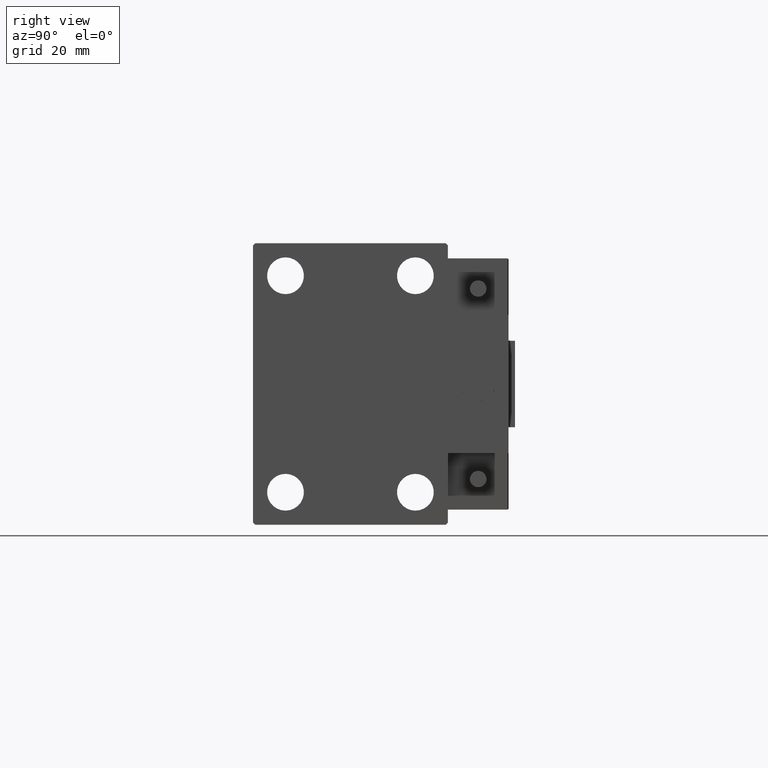
[diagram: clean part render]
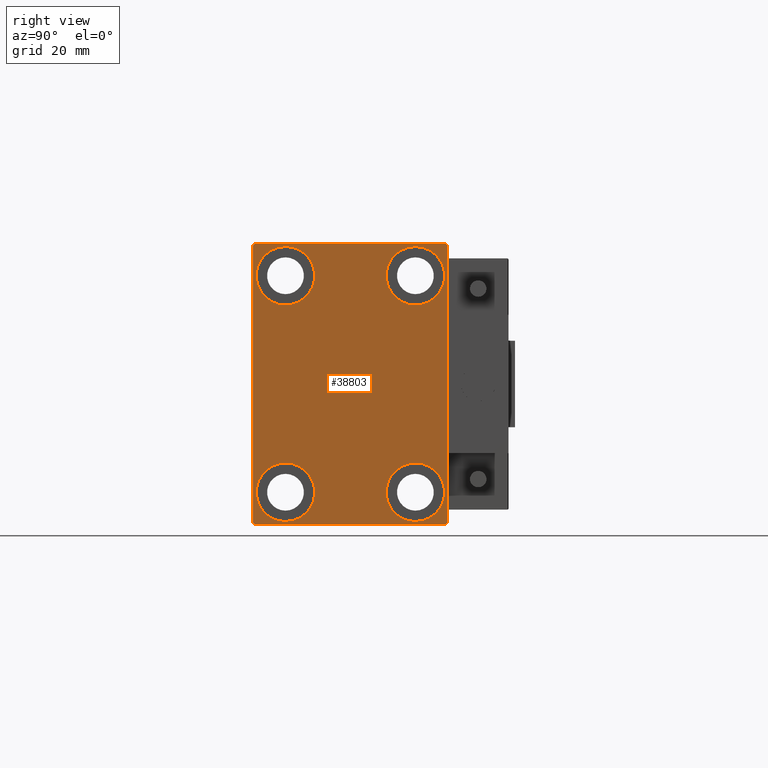
[diagram: same view with one face highlighted and labeled with its STEP entity id]
A machine part, right view. The second image highlights one B-rep face of the part: STEP entity #38803.
In plain terms, the highlighted planar face has unit normal (1, 0, 0).
Its self-contained STEP definition (entity closure, byte-faithful):
#3 = DIRECTION ( 'NONE',  ( -1.000000000000000000, -0.000000000000000000, -0.000000000000000000 ) ) ;
#94 = EDGE_CURVE ( 'NONE', #45570, #44008, #31037, .T. ) ;
#665 = DIRECTION ( 'NONE',  ( -1.000000000000000000, -0.000000000000000000, -0.000000000000000000 ) ) ;
#1421 = DIRECTION ( 'NONE',  ( -1.000000000000000000, -0.000000000000000000, -0.000000000000000000 ) ) ;
#1896 = DIRECTION ( 'NONE',  ( -1.000000000000000000, -0.000000000000000000, -0.000000000000000000 ) ) ;
#2014 = VECTOR ( 'NONE', #27481, 1000.000000000000114 ) ;
#2160 = CARTESIAN_POINT ( 'NONE',  ( 70.00000000000000000, -15.00000000000000355, -25.00000000000000000 ) ) ;
#2370 = LINE ( 'NONE', #45125, #43551 ) ;
#2564 = LINE ( 'NONE', #25465, #20729 ) ;
#2607 = EDGE_LOOP ( 'NONE', ( #25006, #4776, #46552, #29935, #16098, #49405, #22207, #6741 ) ) ;
#2710 = EDGE_CURVE ( 'NONE', #46439, #44018, #40017, .T. ) ;
#2717 = EDGE_CURVE ( 'NONE', #37036, #13383, #13192, .T. ) ;
#2831 = EDGE_CURVE ( 'NONE', #44008, #45570, #14015, .T. ) ;
#3075 = CARTESIAN_POINT ( 'NONE',  ( 70.00000000000000000, -21.99999999999999289, 32.49999999999999289 ) ) ;
#3164 = CARTESIAN_POINT ( 'NONE',  ( 70.00000000000000000, -14.99999999999999645, 31.75000000000000000 ) ) ;
#3456 = AXIS2_PLACEMENT_3D ( 'NONE', #2160, #13612, #21983 ) ;
#3530 = CARTESIAN_POINT ( 'NONE',  ( 70.00000000000000000, 15.00000000000000355, 31.75000000000000000 ) ) ;
#3619 = CARTESIAN_POINT ( 'NONE',  ( 70.00000000000000000, -22.50000000000000711, -32.00000000000000711 ) ) ;
#3623 = AXIS2_PLACEMENT_3D ( 'NONE', #15034, #30561, #6639 ) ;
#3766 = CARTESIAN_POINT ( 'NONE',  ( 70.00000000000000000, -22.50000000000000711, 31.99999999999999289 ) ) ;
#3933 = VERTEX_POINT ( 'NONE', #39271 ) ;
#4776 = ORIENTED_EDGE ( 'NONE', *, *, #38896, .T. ) ;
#6454 = CARTESIAN_POINT ( 'NONE',  ( 70.00000000000000000, 15.00000000000000355, 25.00000000000000000 ) ) ;
#6639 = DIRECTION ( 'NONE',  ( 0.000000000000000000, 0.000000000000000000, -1.000000000000000000 ) ) ;
#6741 = ORIENTED_EDGE ( 'NONE', *, *, #12519, .T. ) ;
#7116 = CARTESIAN_POINT ( 'NONE',  ( 70.00000000000000000, -27.25000000000032330, -27.24999999999957012 ) ) ;
#7741 = CARTESIAN_POINT ( 'NONE',  ( 70.00000000000000000, -15.00000000000000355, -18.25000000000000355 ) ) ;
#7907 = CARTESIAN_POINT ( 'NONE',  ( 70.00000000000000000, -15.00000000000000355, -25.00000000000000000 ) ) ;
#8300 = CARTESIAN_POINT ( 'NONE',  ( 70.00000000000000000, -14.99999999999999645, 25.00000000000000000 ) ) ;
#8625 = EDGE_CURVE ( 'NONE', #36028, #36456, #2564, .T. ) ;
#9329 = EDGE_CURVE ( 'NONE', #20282, #40471, #32107, .T. ) ;
#10381 = EDGE_CURVE ( 'NONE', #29861, #38826, #33100, .T. ) ;
#12369 = DIRECTION ( 'NONE',  ( 0.000000000000000000, 0.000000000000000000, 1.000000000000000000 ) ) ;
#12519 = EDGE_CURVE ( 'NONE', #23786, #29861, #25455, .T. ) ;
#13192 = CIRCLE ( 'NONE', #41616, 6.749999999999999112 ) ;
#13383 = VERTEX_POINT ( 'NONE', #38143 ) ;
#13612 = DIRECTION ( 'NONE',  ( -1.000000000000000000, -0.000000000000000000, -0.000000000000000000 ) ) ;
#13659 = CARTESIAN_POINT ( 'NONE',  ( 70.00000000000000000, -22.50000000000000711, -32.50000000000000711 ) ) ;
#13673 = DIRECTION ( 'NONE',  ( 0.000000000000000000, 0.000000000000000000, -1.000000000000000000 ) ) ;
#13776 = DIRECTION ( 'NONE',  ( -0.000000000000000000, 0.7071067811865376918, 0.7071067811865573427 ) ) ;
#14015 = CIRCLE ( 'NONE', #3456, 6.749999999999999112 ) ;
#14282 = DIRECTION ( 'NONE',  ( 0.000000000000000000, -1.000000000000000000, -1.541976423090495387E-16 ) ) ;
#14677 = EDGE_CURVE ( 'NONE', #44018, #46439, #15127, .T. ) ;
#14742 = LINE ( 'NONE', #7116, #26686 ) ;
#15034 = CARTESIAN_POINT ( 'NONE',  ( 70.00000000000000000, 0.000000000000000000, 0.000000000000000000 ) ) ;
#15127 = CIRCLE ( 'NONE', #19185, 6.749999999999999112 ) ;
#15533 = DIRECTION ( 'NONE',  ( 0.000000000000000000, 0.000000000000000000, 1.000000000000000000 ) ) ;
#15640 = ORIENTED_EDGE ( 'NONE', *, *, #94, .T. ) ;
#16098 = ORIENTED_EDGE ( 'NONE', *, *, #33609, .T. ) ;
#16307 = AXIS2_PLACEMENT_3D ( 'NONE', #18248, #41142, #29969 ) ;
#17145 = DIRECTION ( 'NONE',  ( 0.000000000000000000, 0.000000000000000000, 1.000000000000000000 ) ) ;
#17747 = LINE ( 'NONE', #37311, #38304 ) ;
#18248 = CARTESIAN_POINT ( 'NONE',  ( 70.00000000000000000, 14.99999999999999645, -25.00000000000000000 ) ) ;
#18340 = CARTESIAN_POINT ( 'NONE',  ( 70.00000000000000000, 27.25000000000014921, 27.24999999999976907 ) ) ;
#18487 = CARTESIAN_POINT ( 'NONE',  ( 70.00000000000000000, -15.00000000000000355, -31.75000000000000000 ) ) ;
#19093 = CARTESIAN_POINT ( 'NONE',  ( 70.00000000000000000, -27.25000000000000000, 27.25000000000000000 ) ) ;
#19185 = AXIS2_PLACEMENT_3D ( 'NONE', #36492, #31931, #35501 ) ;
#19193 = ORIENTED_EDGE ( 'NONE', *, *, #2831, .T. ) ;
#20022 = VERTEX_POINT ( 'NONE', #3619 ) ;
#20282 = VERTEX_POINT ( 'NONE', #46500 ) ;
#20729 = VECTOR ( 'NONE', #13776, 1000.000000000000114 ) ;
#21556 = VECTOR ( 'NONE', #14282, 1000.000000000000000 ) ;
#21983 = DIRECTION ( 'NONE',  ( 0.000000000000000000, 0.000000000000000000, 1.000000000000000000 ) ) ;
#22207 = ORIENTED_EDGE ( 'NONE', *, *, #37619, .T. ) ;
#22655 = FACE_BOUND ( 'NONE', #36847, .T. ) ;
#23786 = VERTEX_POINT ( 'NONE', #32670 ) ;
#23809 = DIRECTION ( 'NONE',  ( 0.000000000000000000, 0.000000000000000000, 1.000000000000000000 ) ) ;
#25006 = ORIENTED_EDGE ( 'NONE', *, *, #10381, .T. ) ;
#25230 = EDGE_CURVE ( 'NONE', #13383, #37036, #31742, .T. ) ;
#25455 = LINE ( 'NONE', #18340, #32565 ) ;
#25465 = CARTESIAN_POINT ( 'NONE',  ( 70.00000000000000000, 27.25000000000032685, -27.24999999999957012 ) ) ;
#26686 = VECTOR ( 'NONE', #49091, 1000.000000000000000 ) ;
#26964 = EDGE_CURVE ( 'NONE', #37908, #20022, #17747, .T. ) ;
#27481 = DIRECTION ( 'NONE',  ( 0.000000000000000000, -0.7071067811865474617, -0.7071067811865474617 ) ) ;
#28875 = DIRECTION ( 'NONE',  ( 0.000000000000000000, 0.000000000000000000, 1.000000000000000000 ) ) ;
#29296 = CARTESIAN_POINT ( 'NONE',  ( 70.00000000000000000, 22.49999999999999289, 32.50000000000000000 ) ) ;
#29861 = VERTEX_POINT ( 'NONE', #39417 ) ;
#29935 = ORIENTED_EDGE ( 'NONE', *, *, #47347, .T. ) ;
#29969 = DIRECTION ( 'NONE',  ( 0.000000000000000000, 0.000000000000000000, 1.000000000000000000 ) ) ;
#30059 = FACE_BOUND ( 'NONE', #46887, .T. ) ;
#30301 = ORIENTED_EDGE ( 'NONE', *, *, #25230, .T. ) ;
#30561 = DIRECTION ( 'NONE',  ( 1.000000000000000000, 0.000000000000000000, 0.000000000000000000 ) ) ;
#31037 = CIRCLE ( 'NONE', #44012, 6.749999999999999112 ) ;
#31162 = ORIENTED_EDGE ( 'NONE', *, *, #33732, .T. ) ;
#31691 = CARTESIAN_POINT ( 'NONE',  ( 70.00000000000000000, 15.00000000000000355, 25.00000000000000000 ) ) ;
#31742 = CIRCLE ( 'NONE', #16307, 6.749999999999999112 ) ;
#31931 = DIRECTION ( 'NONE',  ( -1.000000000000000000, -0.000000000000000000, -0.000000000000000000 ) ) ;
#32107 = CIRCLE ( 'NONE', #40232, 6.749999999999999112 ) ;
#32445 = CARTESIAN_POINT ( 'NONE',  ( 70.00000000000000000, 14.99999999999999645, -25.00000000000000000 ) ) ;
#32563 = CARTESIAN_POINT ( 'NONE',  ( 70.00000000000000000, 22.00000000000001421, -32.50000000000000711 ) ) ;
#32565 = VECTOR ( 'NONE', #49121, 999.9999999999998863 ) ;
#32670 = CARTESIAN_POINT ( 'NONE',  ( 70.00000000000000000, 22.49999999999999289, 31.99999999999999289 ) ) ;
#32672 = AXIS2_PLACEMENT_3D ( 'NONE', #8300, #1421, #23809 ) ;
#33100 = LINE ( 'NONE', #29296, #21556 ) ;
#33609 = EDGE_CURVE ( 'NONE', #3933, #36028, #44465, .T. ) ;
#33660 = DIRECTION ( 'NONE',  ( -1.000000000000000000, -0.000000000000000000, -0.000000000000000000 ) ) ;
#33732 = EDGE_CURVE ( 'NONE', #40471, #20282, #36084, .T. ) ;
#35501 = DIRECTION ( 'NONE',  ( 0.000000000000000000, 0.000000000000000000, 1.000000000000000000 ) ) ;
#36028 = VERTEX_POINT ( 'NONE', #32563 ) ;
#36084 = CIRCLE ( 'NONE', #49089, 6.749999999999999112 ) ;
#36088 = ORIENTED_EDGE ( 'NONE', *, *, #2717, .T. ) ;
#36456 = VERTEX_POINT ( 'NONE', #42158 ) ;
#36492 = CARTESIAN_POINT ( 'NONE',  ( 70.00000000000000000, -14.99999999999999645, 25.00000000000000000 ) ) ;
#36847 = EDGE_LOOP ( 'NONE', ( #37226, #43998 ) ) ;
#37036 = VERTEX_POINT ( 'NONE', #38460 ) ;
#37226 = ORIENTED_EDGE ( 'NONE', *, *, #2710, .T. ) ;
#37311 = CARTESIAN_POINT ( 'NONE',  ( 70.00000000000000000, -22.50000000000000711, 32.49999999999999289 ) ) ;
#37619 = EDGE_CURVE ( 'NONE', #36456, #23786, #2370, .T. ) ;
#37908 = VERTEX_POINT ( 'NONE', #3766 ) ;
#38143 = CARTESIAN_POINT ( 'NONE',  ( 70.00000000000000000, 14.99999999999999645, -31.75000000000000000 ) ) ;
#38175 = FACE_BOUND ( 'NONE', #43302, .T. ) ;
#38304 = VECTOR ( 'NONE', #13673, 1000.000000000000000 ) ;
#38460 = CARTESIAN_POINT ( 'NONE',  ( 70.00000000000000000, 14.99999999999999645, -18.25000000000000355 ) ) ;
#38803 = ADVANCED_FACE ( 'NONE', ( #30059, #22655, #45063, #38175, #49132 ), #49899, .T. ) ;
#38826 = VERTEX_POINT ( 'NONE', #3075 ) ;
#38896 = EDGE_CURVE ( 'NONE', #38826, #37908, #39166, .T. ) ;
#39166 = LINE ( 'NONE', #19093, #2014 ) ;
#39271 = CARTESIAN_POINT ( 'NONE',  ( 70.00000000000000000, -22.00000000000002132, -32.50000000000000711 ) ) ;
#39417 = CARTESIAN_POINT ( 'NONE',  ( 70.00000000000000000, 21.99999999999999289, 32.50000000000000000 ) ) ;
#40017 = CIRCLE ( 'NONE', #32672, 6.749999999999999112 ) ;
#40232 = AXIS2_PLACEMENT_3D ( 'NONE', #6454, #33660, #17145 ) ;
#40471 = VERTEX_POINT ( 'NONE', #3530 ) ;
#41142 = DIRECTION ( 'NONE',  ( -1.000000000000000000, -0.000000000000000000, -0.000000000000000000 ) ) ;
#41616 = AXIS2_PLACEMENT_3D ( 'NONE', #32445, #665, #12369 ) ;
#42045 = EDGE_LOOP ( 'NONE', ( #45656, #31162 ) ) ;
#42158 = CARTESIAN_POINT ( 'NONE',  ( 70.00000000000000000, 22.50000000000000000, -32.00000000000002132 ) ) ;
#43302 = EDGE_LOOP ( 'NONE', ( #15640, #19193 ) ) ;
#43551 = VECTOR ( 'NONE', #49706, 1000.000000000000000 ) ;
#43998 = ORIENTED_EDGE ( 'NONE', *, *, #14677, .T. ) ;
#44008 = VERTEX_POINT ( 'NONE', #7741 ) ;
#44012 = AXIS2_PLACEMENT_3D ( 'NONE', #7907, #3, #15533 ) ;
#44018 = VERTEX_POINT ( 'NONE', #3164 ) ;
#44465 = LINE ( 'NONE', #13659, #47522 ) ;
#44708 = DIRECTION ( 'NONE',  ( 0.000000000000000000, 1.000000000000000000, 0.000000000000000000 ) ) ;
#45063 = FACE_BOUND ( 'NONE', #42045, .T. ) ;
#45125 = CARTESIAN_POINT ( 'NONE',  ( 70.00000000000000000, 22.50000000000000000, -32.50000000000000711 ) ) ;
#45570 = VERTEX_POINT ( 'NONE', #18487 ) ;
#45656 = ORIENTED_EDGE ( 'NONE', *, *, #9329, .T. ) ;
#46439 = VERTEX_POINT ( 'NONE', #48093 ) ;
#46500 = CARTESIAN_POINT ( 'NONE',  ( 70.00000000000000000, 15.00000000000000355, 18.25000000000000355 ) ) ;
#46552 = ORIENTED_EDGE ( 'NONE', *, *, #26964, .T. ) ;
#46887 = EDGE_LOOP ( 'NONE', ( #30301, #36088 ) ) ;
#47347 = EDGE_CURVE ( 'NONE', #20022, #3933, #14742, .T. ) ;
#47522 = VECTOR ( 'NONE', #44708, 1000.000000000000000 ) ;
#48093 = CARTESIAN_POINT ( 'NONE',  ( 70.00000000000000000, -14.99999999999999645, 18.25000000000000355 ) ) ;
#49089 = AXIS2_PLACEMENT_3D ( 'NONE', #31691, #1896, #28875 ) ;
#49091 = DIRECTION ( 'NONE',  ( -0.000000000000000000, 0.7071067811865378028, -0.7071067811865573427 ) ) ;
#49121 = DIRECTION ( 'NONE',  ( -0.000000000000000000, -0.7071067811865425767, 0.7071067811865525687 ) ) ;
#49132 = FACE_OUTER_BOUND ( 'NONE', #2607, .T. ) ;
#49405 = ORIENTED_EDGE ( 'NONE', *, *, #8625, .T. ) ;
#49706 = DIRECTION ( 'NONE',  ( 0.000000000000000000, -1.067522139062650425E-16, 1.000000000000000000 ) ) ;
#49899 = PLANE ( 'NONE',  #3623 ) ;